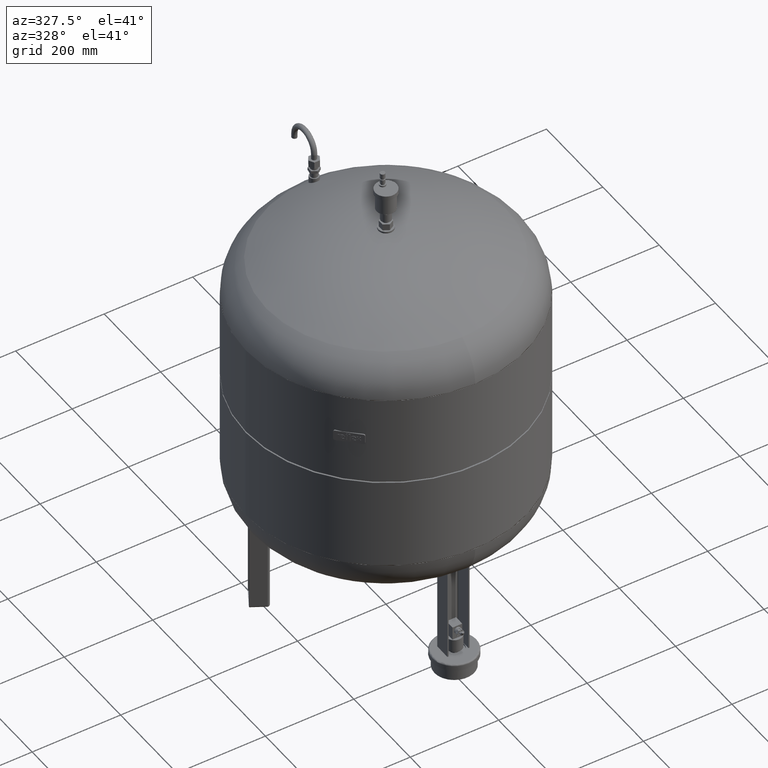
[diagram: clean part render]
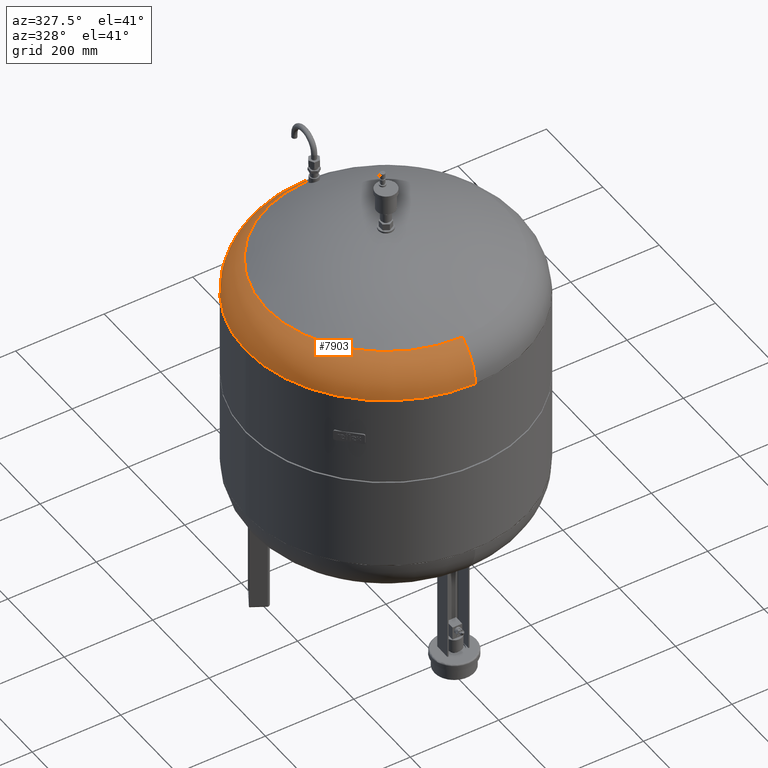
[diagram: same view with one face highlighted and labeled with its STEP entity id]
A machine part, auxiliary view. The second image highlights one B-rep face of the part: STEP entity #7903.
In plain terms, the highlighted toroidal blend (fillet) surface has major radius 218 mm and minor (blend) radius 99 mm.
Its self-contained STEP definition (entity closure, byte-faithful):
#7808=CARTESIAN_POINT('',(-317.000000000000060,1.070324E-014,768.240550627371480));
#7809=VERTEX_POINT('',#7808);
#7833=CARTESIAN_POINT('',(1.282117E-018,-317.0,768.240550627371140));
#7834=VERTEX_POINT('',#7833);
#7842=CARTESIAN_POINT('',(-1.556097E-014,4.952455E-014,768.240550627371360));
#7843=DIRECTION('',(0.0,0.0,-1.0));
#7844=DIRECTION('',(-1.0,0.0,0.0));
#7845=AXIS2_PLACEMENT_3D('',#7842,#7843,#7844);
#7846=CIRCLE('',#7845,317.000000000000060);
#7847=EDGE_CURVE('',#7834,#7809,#7846,.T.);
#7852=CARTESIAN_POINT('',(-3.639005E-030,4.952455E-014,768.240550627371360));
#7853=DIRECTION('',(-9.619823E-017,3.061617E-016,-1.0));
#7854=DIRECTION('',(0.0,1.0,0.0));
#7855=AXIS2_PLACEMENT_3D('',#7852,#7853,#7854);
#7856=TOROIDAL_SURFACE('',#7855,218.0,99.0);
#7857=CARTESIAN_POINT('',(-3.882130E-014,317.000000000000110,768.240550627371590));
#7858=VERTEX_POINT('',#7857);
#7859=CARTESIAN_POINT('',(-2.507790E-014,270.639024390243830,852.086439681297630));
#7860=VERTEX_POINT('',#7859);
#7861=CARTESIAN_POINT('',(-2.669730E-014,218.000000000000060,768.240550627371480));
#7862=DIRECTION('',(1.0,0.0,0.0));
#7863=DIRECTION('',(0.0,1.0,0.0));
#7864=AXIS2_PLACEMENT_3D('',#7861,#7862,#7863);
#7865=CIRCLE('',#7864,99.0);
#7866=EDGE_CURVE('',#7858,#7860,#7865,.T.);
#7867=ORIENTED_EDGE('',*,*,#7866,.F.);
#7868=CARTESIAN_POINT('',(-1.556097E-014,4.952455E-014,768.240550627371360));
#7869=DIRECTION('',(0.0,0.0,-1.0));
#7870=DIRECTION('',(-1.0,0.0,0.0));
#7871=AXIS2_PLACEMENT_3D('',#7868,#7869,#7870);
#7872=CIRCLE('',#7871,317.000000000000060);
#7873=EDGE_CURVE('',#7809,#7858,#7872,.T.);
#7874=ORIENTED_EDGE('',*,*,#7873,.F.);
#7875=ORIENTED_EDGE('',*,*,#7847,.F.);
#7876=CARTESIAN_POINT('',(8.066920E-015,-270.639024390243830,852.086439681297410));
#7877=VERTEX_POINT('',#7876);
#7878=CARTESIAN_POINT('',(8.817081E-019,-217.999999999999940,768.240550627371250));
#7879=DIRECTION('',(-1.0,0.0,0.0));
#7880=DIRECTION('',(0.0,-1.0,0.0));
#7881=AXIS2_PLACEMENT_3D('',#7878,#7879,#7880);
#7882=CIRCLE('',#7881,99.0);
#7883=EDGE_CURVE('',#7834,#7877,#7882,.T.);
#7884=ORIENTED_EDGE('',*,*,#7883,.T.);
#7885=CARTESIAN_POINT('',(-270.639024390243830,-9.289573E-015,852.086439681297630));
#7886=VERTEX_POINT('',#7885);
#7887=CARTESIAN_POINT('',(-7.495146E-015,2.385415E-014,852.086439681297520));
#7888=DIRECTION('',(0.0,0.0,-1.0));
#7889=DIRECTION('',(-1.0,0.0,0.0));
#7890=AXIS2_PLACEMENT_3D('',#7887,#7888,#7889);
#7891=CIRCLE('',#7890,270.639024390243830);
#7892=EDGE_CURVE('',#7877,#7886,#7891,.T.);
#7893=ORIENTED_EDGE('',*,*,#7892,.T.);
#7894=CARTESIAN_POINT('',(-7.495146E-015,2.385415E-014,852.086439681297520));
#7895=DIRECTION('',(0.0,0.0,-1.0));
#7896=DIRECTION('',(-1.0,0.0,0.0));
#7897=AXIS2_PLACEMENT_3D('',#7894,#7895,#7896);
#7898=CIRCLE('',#7897,270.639024390243830);
#7899=EDGE_CURVE('',#7886,#7860,#7898,.T.);
#7900=ORIENTED_EDGE('',*,*,#7899,.T.);
#7901=EDGE_LOOP('',(#7867,#7874,#7875,#7884,#7893,#7900));
#7902=FACE_OUTER_BOUND('',#7901,.T.);
#7903=ADVANCED_FACE('',(#7902),#7856,.T.);